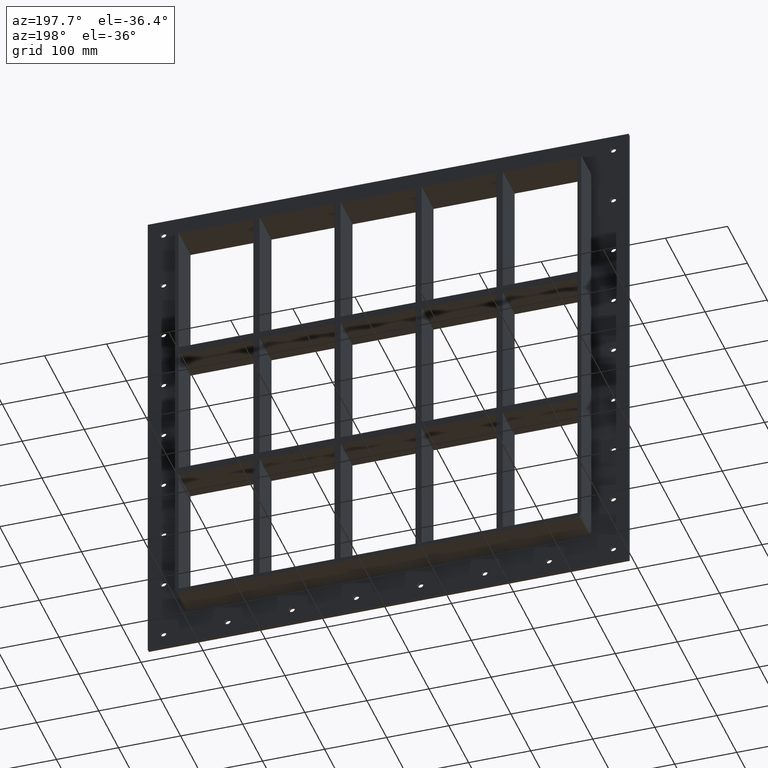
[diagram: clean part render]
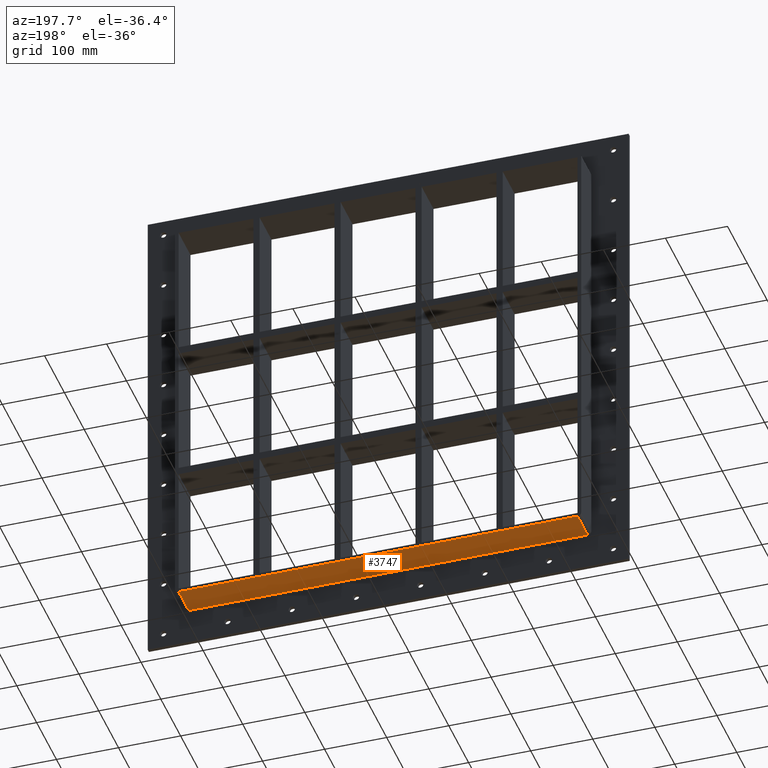
[diagram: same view with one face highlighted and labeled with its STEP entity id]
A machine part, auxiliary view. The second image highlights one B-rep face of the part: STEP entity #3747.
In plain terms, the highlighted planar face has unit normal (0, 0, -1).
Its self-contained STEP definition (entity closure, byte-faithful):
#1685=CARTESIAN_POINT('',(321.25,57.0,-345.0));
#1686=VERTEX_POINT('',#1685);
#1696=CARTESIAN_POINT('',(-321.25,57.0,-345.0));
#1697=VERTEX_POINT('',#1696);
#1698=CARTESIAN_POINT('',(321.25,57.0,-345.0));
#1699=DIRECTION('',(-1.0,0.0,0.0));
#1700=VECTOR('',#1699,642.5);
#1701=LINE('',#1698,#1700);
#1702=EDGE_CURVE('',#1686,#1697,#1701,.T.);
#3217=CARTESIAN_POINT('',(-321.25,6.000000000000001,-345.0));
#3218=VERTEX_POINT('',#3217);
#3228=CARTESIAN_POINT('',(321.25,6.000000000000001,-345.0));
#3229=VERTEX_POINT('',#3228);
#3230=CARTESIAN_POINT('',(321.25,6.000000000000001,-345.0));
#3231=DIRECTION('',(-1.0,0.0,0.0));
#3232=VECTOR('',#3231,642.5);
#3233=LINE('',#3230,#3232);
#3234=EDGE_CURVE('',#3229,#3218,#3233,.T.);
#3686=CARTESIAN_POINT('',(321.25,6.000000000000001,-345.0));
#3687=DIRECTION('',(0.0,1.0,0.0));
#3688=VECTOR('',#3687,51.0);
#3689=LINE('',#3686,#3688);
#3690=EDGE_CURVE('',#3229,#1686,#3689,.T.);
#3731=CARTESIAN_POINT('',(327.24999999999994,0.0,-345.0));
#3732=DIRECTION('',(0.0,0.0,-1.0));
#3733=DIRECTION('',(-1.0,0.0,0.0));
#3734=AXIS2_PLACEMENT_3D('',#3731,#3732,#3733);
#3735=PLANE('',#3734);
#3736=ORIENTED_EDGE('',*,*,#3234,.T.);
#3737=CARTESIAN_POINT('',(-321.25,57.0,-345.0));
#3738=DIRECTION('',(0.0,-1.0,0.0));
#3739=VECTOR('',#3738,51.0);
#3740=LINE('',#3737,#3739);
#3741=EDGE_CURVE('',#1697,#3218,#3740,.T.);
#3742=ORIENTED_EDGE('',*,*,#3741,.F.);
#3743=ORIENTED_EDGE('',*,*,#1702,.F.);
#3744=ORIENTED_EDGE('',*,*,#3690,.F.);
#3745=EDGE_LOOP('',(#3736,#3742,#3743,#3744));
#3746=FACE_OUTER_BOUND('',#3745,.T.);
#3747=ADVANCED_FACE('',(#3746),#3735,.T.);